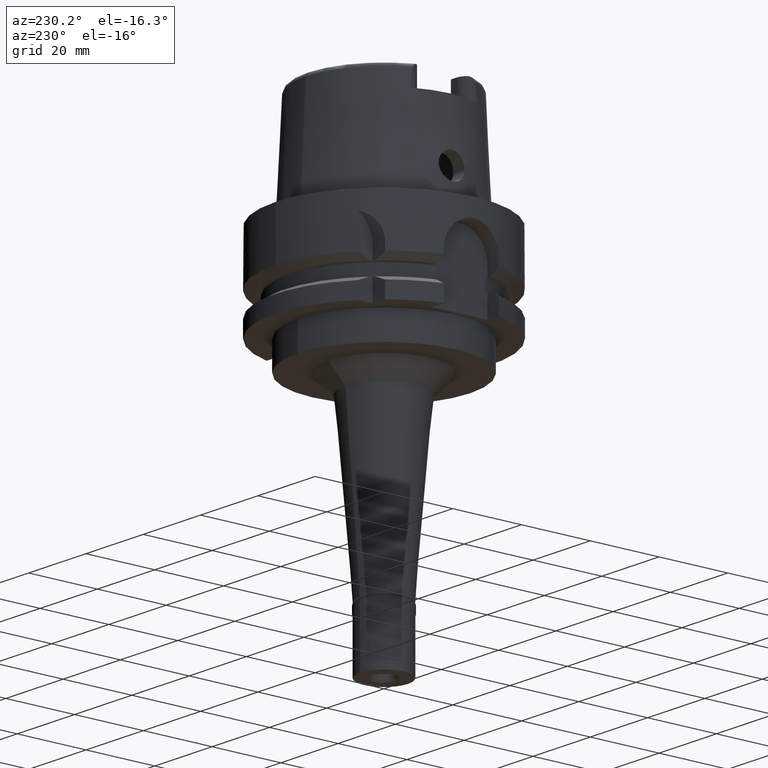
[diagram: clean part render]
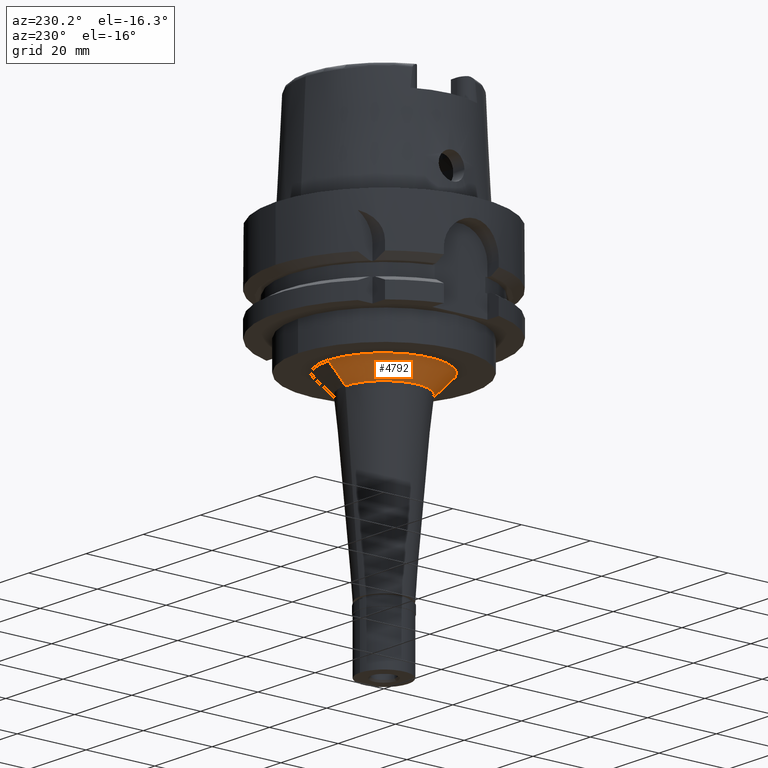
[diagram: same view with one face highlighted and labeled with its STEP entity id]
A machine part, auxiliary view. The second image highlights one B-rep face of the part: STEP entity #4792.
In plain terms, the highlighted conical surface has half-angle 45 deg.
Its self-contained STEP definition (entity closure, byte-faithful):
#49 = VERTEX_POINT ( 'NONE', #1600 ) ;
#629 = VERTEX_POINT ( 'NONE', #5380 ) ;
#740 = DIRECTION ( 'NONE',  ( 0.0000000000000000000, -0.7071067811864980568, -0.7071067811865969777 ) ) ;
#770 = DIRECTION ( 'NONE',  ( 0.0000000000000000000, 0.0000000000000000000, -1.000000000000000000 ) ) ;
#938 = VERTEX_POINT ( 'NONE', #3623 ) ;
#962 = EDGE_LOOP ( 'NONE', ( #4790, #1836, #1826, #4649 ) ) ;
#1490 = DIRECTION ( 'NONE',  ( 0.0000000000000000000, -1.000000000000000000, 0.0000000000000000000 ) ) ;
#1600 = CARTESIAN_POINT ( 'NONE',  ( 0.0000000000000000000, -16.22570244829999808, -34.00000000000000000 ) ) ;
#1615 = AXIS2_PLACEMENT_3D ( 'NONE', #4702, #4818, #2669 ) ;
#1826 = ORIENTED_EDGE ( 'NONE', *, *, #4382, .T. ) ;
#1836 = ORIENTED_EDGE ( 'NONE', *, *, #2475, .F. ) ;
#2319 = LINE ( 'NONE', #3998, #4716 ) ;
#2370 = DIRECTION ( 'NONE',  ( 0.0000000000000000000, 0.7071067811864980568, -0.7071067811865969777 ) ) ;
#2391 = LINE ( 'NONE', #3609, #2879 ) ;
#2475 = EDGE_CURVE ( 'NONE', #49, #4416, #2391, .T. ) ;
#2669 = DIRECTION ( 'NONE',  ( 0.0000000000000000000, 1.000000000000000000, 0.0000000000000000000 ) ) ;
#2671 = CIRCLE ( 'NONE', #5219, 16.22570244829999808 ) ;
#2879 = VECTOR ( 'NONE', #2370, 1000.000000000000000 ) ;
#3123 = DIRECTION ( 'NONE',  ( 0.0000000000000000000, 0.0000000000000000000, -1.000000000000000000 ) ) ;
#3144 = FACE_OUTER_BOUND ( 'NONE', #962, .T. ) ;
#3264 = EDGE_CURVE ( 'NONE', #938, #629, #2319, .T. ) ;
#3413 = EDGE_CURVE ( 'NONE', #4416, #629, #4596, .T. ) ;
#3609 = CARTESIAN_POINT ( 'NONE',  ( 0.0000000000000000000, -16.22570244829999808, -34.00000000000000000 ) ) ;
#3623 = CARTESIAN_POINT ( 'NONE',  ( 0.0000000000000000000, 16.22570244829999808, -34.00000000000000000 ) ) ;
#3696 = CARTESIAN_POINT ( 'NONE',  ( 0.0000000000000000000, -11.22570244829999986, -39.00000000000000000 ) ) ;
#3724 = AXIS2_PLACEMENT_3D ( 'NONE', #5291, #770, #1490 ) ;
#3998 = CARTESIAN_POINT ( 'NONE',  ( 0.0000000000000000000, 16.22570244829999808, -34.00000000000000000 ) ) ;
#4382 = EDGE_CURVE ( 'NONE', #49, #938, #2671, .T. ) ;
#4416 = VERTEX_POINT ( 'NONE', #3696 ) ;
#4596 = CIRCLE ( 'NONE', #3724, 11.22570244829999986 ) ;
#4649 = ORIENTED_EDGE ( 'NONE', *, *, #3264, .T. ) ;
#4702 = CARTESIAN_POINT ( 'NONE',  ( 0.0000000000000000000, 0.0000000000000000000, -36.50000000000000000 ) ) ;
#4716 = VECTOR ( 'NONE', #740, 1000.000000000000000 ) ;
#4790 = ORIENTED_EDGE ( 'NONE', *, *, #3413, .F. ) ;
#4792 = ADVANCED_FACE ( 'NONE', ( #3144 ), #4871, .T. ) ;
#4793 = DIRECTION ( 'NONE',  ( 0.0000000000000000000, -1.000000000000000000, 0.0000000000000000000 ) ) ;
#4818 = DIRECTION ( 'NONE',  ( 0.0000000000000000000, 0.0000000000000000000, 1.000000000000000000 ) ) ;
#4871 = CONICAL_SURFACE ( 'NONE', #1615, 13.72570244829999808, 0.7853981633972997312 ) ;
#5207 = CARTESIAN_POINT ( 'NONE',  ( 0.0000000000000000000, 0.0000000000000000000, -34.00000000000000000 ) ) ;
#5219 = AXIS2_PLACEMENT_3D ( 'NONE', #5207, #3123, #4793 ) ;
#5291 = CARTESIAN_POINT ( 'NONE',  ( 0.0000000000000000000, 0.0000000000000000000, -39.00000000000000000 ) ) ;
#5380 = CARTESIAN_POINT ( 'NONE',  ( 0.0000000000000000000, 11.22570244829999986, -39.00000000000000000 ) ) ;